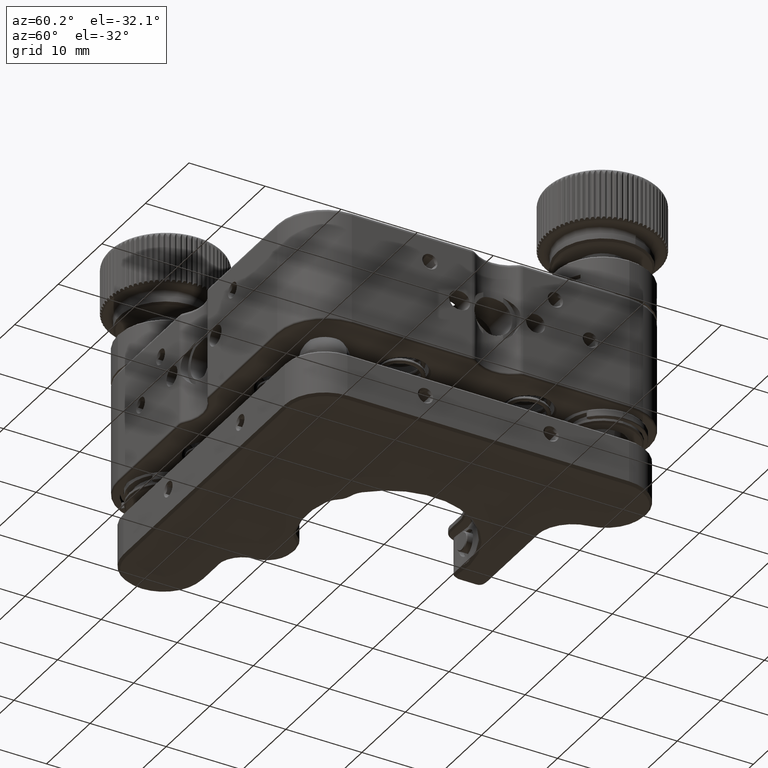
[diagram: clean part render]
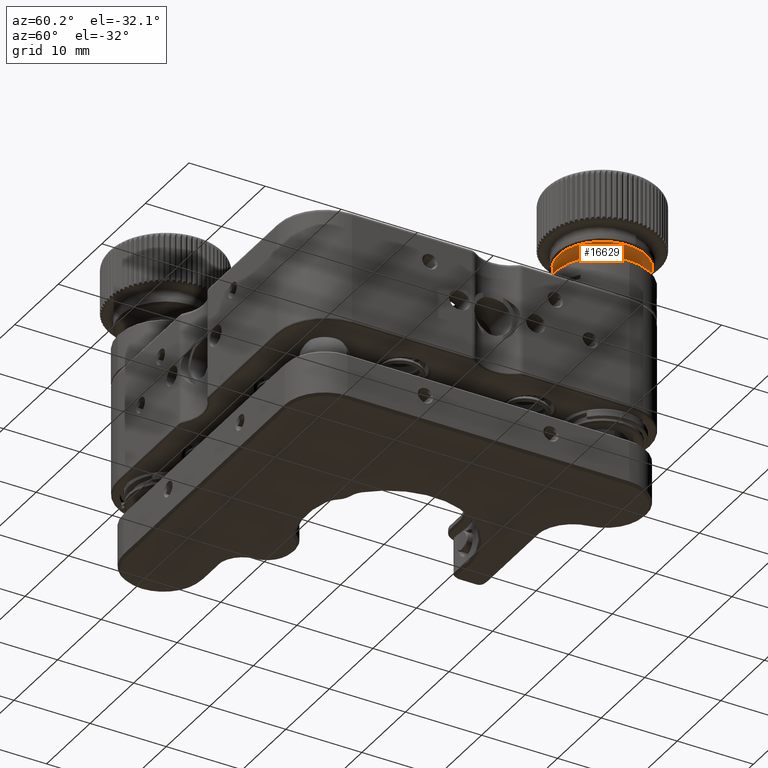
[diagram: same view with one face highlighted and labeled with its STEP entity id]
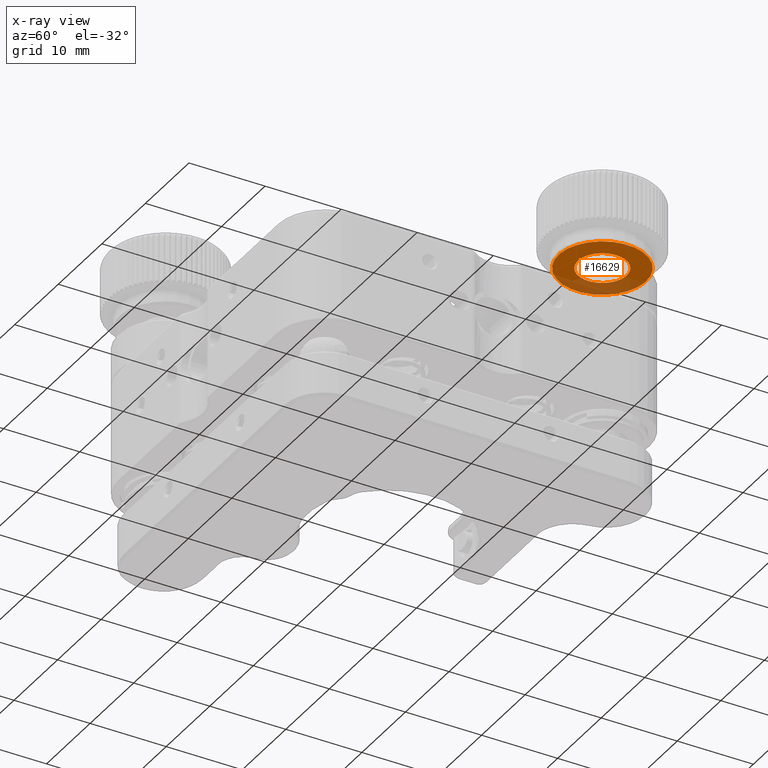
[diagram: x-ray of the same camera — body ghosted, the highlighted face saturated]
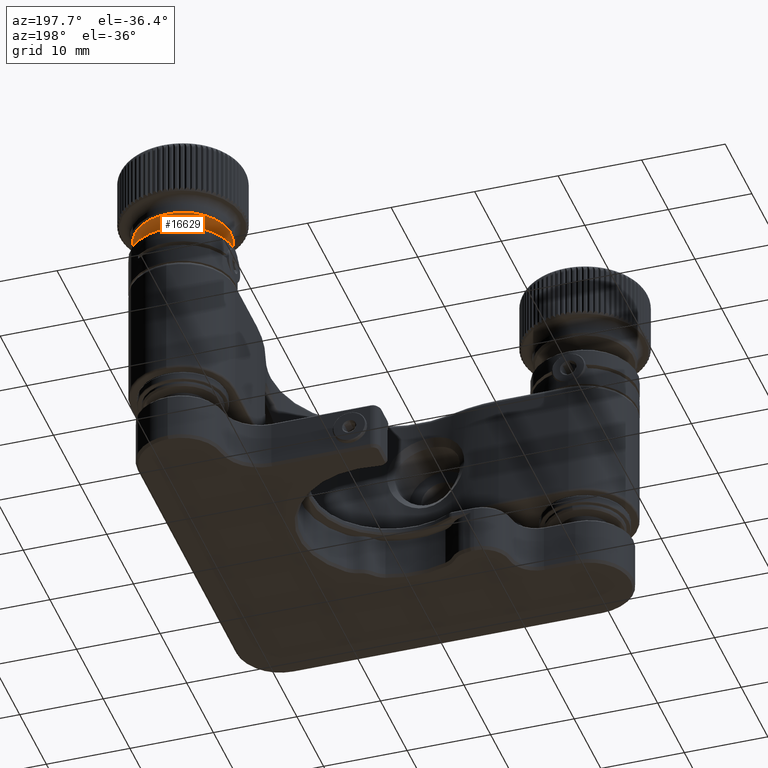
[diagram: same view with one face highlighted and labeled with its STEP entity id]
A machine part, auxiliary view. The second image highlights one B-rep face of the part: STEP entity #16629.
The next image is the same camera in x-ray: the body ghosted, the highlighted face saturated — about 32% of this face is hidden behind the body in this view.
A second angle (auxiliary view) of the same face is appended — the face is thin or edge-on in the first view.
In plain terms, the highlighted planar face has unit normal (-0, -0, -1).
Its self-contained STEP definition (entity closure, byte-faithful):
#1616 = AXIS2_PLACEMENT_3D ( 'NONE', #17254, #26842, #18417 ) ;
#2163 = CARTESIAN_POINT ( 'NONE',  ( 18.24999999999999645, 18.25000000000000000, 14.70182608337572816 ) ) ;
#3826 = EDGE_CURVE ( 'NONE', #48711, #30901, #39237, .T. ) ;
#4361 = CARTESIAN_POINT ( 'NONE',  ( 15.09075143559418386, 17.74093368968293660, 14.70182608337572816 ) ) ;
#5106 = AXIS2_PLACEMENT_3D ( 'NONE', #2163, #20355, #38600 ) ;
#8870 = DIRECTION ( 'NONE',  ( -0.9872651763768155453, -0.1590832219740819786, 0.000000000000000000 ) ) ;
#8909 = EDGE_CURVE ( 'NONE', #46436, #57623, #28086, .T. ) ;
#13475 = AXIS2_PLACEMENT_3D ( 'NONE', #41927, #55605, #14447 ) ;
#14447 = DIRECTION ( 'NONE',  ( -0.9872651763768155453, -0.1590832219740819786, 0.000000000000000000 ) ) ;
#16629 = ADVANCED_FACE ( 'NONE', ( #53930, #29898 ), #57540, .T. ) ;
#17254 = CARTESIAN_POINT ( 'NONE',  ( 18.24999999999999645, 18.25000000000000000, 14.70182608337572816 ) ) ;
#18002 = EDGE_CURVE ( 'NONE', #30901, #48711, #40850, .T. ) ;
#18417 = DIRECTION ( 'NONE',  ( -0.9872651763768155453, -0.1590832219740821729, 1.272702386091337261E-16 ) ) ;
#19322 = AXIS2_PLACEMENT_3D ( 'NONE', #34115, #52218, #29656 ) ;
#20355 = DIRECTION ( 'NONE',  ( -1.110223024625156294E-16, -1.110223024625156294E-16, -1.000000000000000000 ) ) ;
#24812 = CARTESIAN_POINT ( 'NONE',  ( 23.92677476416669435, 19.16472852635097368, 14.70182608337572816 ) ) ;
#25116 = ORIENTED_EDGE ( 'NONE', *, *, #3826, .T. ) ;
#26842 = DIRECTION ( 'NONE',  ( -1.110223024625156417E-16, -1.110223024625156294E-16, -1.000000000000000000 ) ) ;
#28086 = CIRCLE ( 'NONE', #19322, 5.750000000000009770 ) ;
#29656 = DIRECTION ( 'NONE',  ( -0.9872651763768156563, -0.1590832219740820341, 0.000000000000000000 ) ) ;
#29898 = FACE_OUTER_BOUND ( 'NONE', #42444, .T. ) ;
#30901 = VERTEX_POINT ( 'NONE', #59041 ) ;
#34115 = CARTESIAN_POINT ( 'NONE',  ( 18.24999999999999645, 18.25000000000000000, 14.70182608337572816 ) ) ;
#38600 = DIRECTION ( 'NONE',  ( -0.9872651763768156563, -0.1590832219740820341, 0.000000000000000000 ) ) ;
#39237 = CIRCLE ( 'NONE', #13475, 3.200000000000002398 ) ;
#40850 = CIRCLE ( 'NONE', #49478, 3.200000000000002398 ) ;
#41927 = CARTESIAN_POINT ( 'NONE',  ( 18.24999999999999645, 18.25000000000000000, 14.70182608337572816 ) ) ;
#42087 = CARTESIAN_POINT ( 'NONE',  ( 12.57322523583329499, 17.33527147364902632, 14.70182608337572816 ) ) ;
#42444 = EDGE_LOOP ( 'NONE', ( #48326, #55841 ) ) ;
#46436 = VERTEX_POINT ( 'NONE', #42087 ) ;
#48326 = ORIENTED_EDGE ( 'NONE', *, *, #54185, .T. ) ;
#48711 = VERTEX_POINT ( 'NONE', #4361 ) ;
#48730 = EDGE_LOOP ( 'NONE', ( #25116, #56054 ) ) ;
#49478 = AXIS2_PLACEMENT_3D ( 'NONE', #54769, #49714, #8870 ) ;
#49714 = DIRECTION ( 'NONE',  ( 1.110223024625156294E-16, 1.110223024625156294E-16, 1.000000000000000000 ) ) ;
#52218 = DIRECTION ( 'NONE',  ( -1.110223024625156294E-16, -1.110223024625156294E-16, -1.000000000000000000 ) ) ;
#53930 = FACE_BOUND ( 'NONE', #48730, .T. ) ;
#54185 = EDGE_CURVE ( 'NONE', #57623, #46436, #58431, .T. ) ;
#54769 = CARTESIAN_POINT ( 'NONE',  ( 18.24999999999999645, 18.25000000000000000, 14.70182608337572816 ) ) ;
#55605 = DIRECTION ( 'NONE',  ( 1.110223024625156294E-16, 1.110223024625156294E-16, 1.000000000000000000 ) ) ;
#55841 = ORIENTED_EDGE ( 'NONE', *, *, #8909, .T. ) ;
#56054 = ORIENTED_EDGE ( 'NONE', *, *, #18002, .T. ) ;
#57540 = PLANE ( 'NONE',  #1616 ) ;
#57623 = VERTEX_POINT ( 'NONE', #24812 ) ;
#58431 = CIRCLE ( 'NONE', #5106, 5.750000000000009770 ) ;
#59041 = CARTESIAN_POINT ( 'NONE',  ( 21.40924856440580726, 18.75906631031705984, 14.70182608337572816 ) ) ;